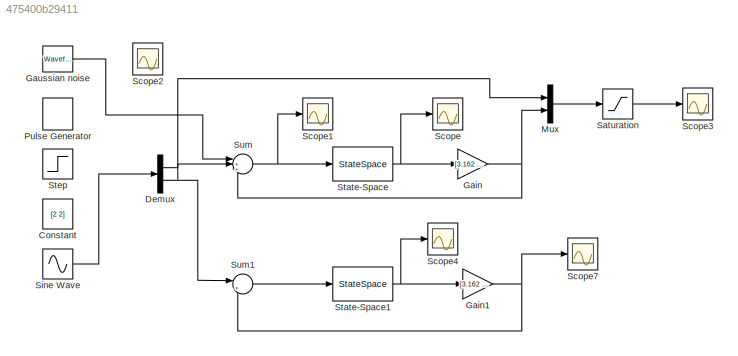
MODEL slx_475400b29411
KIND model
CONFIG AbsTol = auto
CONFIG EnableMultiTasking = off
CONFIG FixedStep = auto
CONFIG MaxStep = auto
CONFIG MinStep = auto
CONFIG RelTol = 1e-3
CONFIG SampleTimeConstraint = Unconstrained
CONFIG SolverName = VariableStepAuto
CONFIG StartTime = 0.0
CONFIG StopTime = 10.0
BLOCK [Constant] Constant
  Value = [2 2]
BLOCK [Demux] Demux
  Outputs = 2
BLOCK [Gain] Gain
  Gain = [3.162 1.376]
  Multiplication = Matrix(K*u)
BLOCK [Gain] Gain1
  Gain = [3.162 1.376]
  Multiplication = Matrix(K*u)
BLOCK [Reference] Gaussian noise  REF=simulink/Sources/Waveform
Generator
  SourceBlock = simulink/Sources/Waveform\nGenerator
  SourceType = WaveformGenerator
BLOCK [Mux] Mux
  DisplayOption = bar
  Inputs = 2
BLOCK [DiscretePulseGenerator] Pulse Generator
  Amplitude = [1 1]
  Period = 10
  PulseType = Time based
  PulseWidth = 5
BLOCK [Saturate] Saturation
  UpperLimit = 6
BLOCK [Scope] Scope
  Floating = off
  NumInputPorts = 1
  ScopeSpecificationString = Simulink.scopes.TimeScopeBlockCfg('CurrentConfiguration', extmgr.ConfigurationSet(extmgr.Configuration('Core','General UI',true,'FigureColor',[1 1 1]),extmgr.Configuration('Core','Source UI',true),extmgr.Configuration('Sources','WiredSimulink',true),extmgr.Configuration('Visuals','Time Domain',true,'SerializedDisplays',{struct('MinYLimReal','-0.06739','MaxYLimReal','0.60655','YLabelReal','','MinYL...<+1581ch>
BLOCK [Scope] Scope1
  Floating = off
  NumInputPorts = 1
  ScopeSpecificationString = Simulink.scopes.TimeScopeBlockCfg('CurrentConfiguration', extmgr.ConfigurationSet(extmgr.Configuration('Core','General UI',true),extmgr.Configuration('Core','Source UI',true),extmgr.Configuration('Sources','WiredSimulink',true,'DataLoggingVariableName','ScopeData1'),extmgr.Configuration('Visuals','Time Domain',true,'SerializedDisplays',{struct('MinYLimReal','-0.27093','MaxYLimReal','1.14121','YLab...<+1480ch>
BLOCK [Scope] Scope2
  Floating = off
  NumInputPorts = 1
  ScopeSpecificationString = Simulink.scopes.TimeScopeBlockCfg('CurrentConfiguration', extmgr.ConfigurationSet(extmgr.Configuration('Core','General UI',true),extmgr.Configuration('Core','Source UI',true),extmgr.Configuration('Sources','WiredSimulink',true,'DataLoggingVariableName','ScopeData1'),extmgr.Configuration('Visuals','Time Domain',true,'SerializedDisplays',{struct('MinYLimReal','-1.00000','MaxYLimReal','1.00000','YLab...<+1521ch>
BLOCK [Scope] Scope3
  Floating = off
  NumInputPorts = 1
  ScopeSpecificationString = Simulink.scopes.TimeScopeBlockCfg('CurrentConfiguration', extmgr.ConfigurationSet(extmgr.Configuration('Core','General UI',true,'FigureColor',[1 1 1]),extmgr.Configuration('Core','Source UI',true),extmgr.Configuration('Sources','WiredSimulink',true,'DataLoggingVariableName','ScopeData3'),extmgr.Configuration('Visuals','Time Domain',true,'SerializedDisplays',{struct('MinYLimReal','-0.69205','MaxYLi...<+1652ch>
BLOCK [Scope] Scope4
  Floating = off
  NumInputPorts = 1
  ScopeSpecificationString = Simulink.scopes.TimeScopeBlockCfg('CurrentConfiguration', extmgr.ConfigurationSet(extmgr.Configuration('Core','General UI',true),extmgr.Configuration('Core','Source UI',true),extmgr.Configuration('Sources','WiredSimulink',true,'DataLoggingVariableName','ScopeData4'),extmgr.Configuration('Visuals','Time Domain',true,'SerializedDisplays',{struct('MinYLimReal','-0.06739','MaxYLimReal','0.60655','YLab...<+1508ch>
BLOCK [Scope] Scope7
  Floating = off
  NumInputPorts = 1
  ScopeSpecificationString = Simulink.scopes.TimeScopeBlockCfg('CurrentConfiguration', extmgr.ConfigurationSet(extmgr.Configuration('Core','General UI',true),extmgr.Configuration('Core','Source UI',true),extmgr.Configuration('Sources','WiredSimulink',true,'DataLoggingVariableName','ScopeData7'),extmgr.Configuration('Visuals','Time Domain',true,'SerializedDisplays',{struct('MinYLimReal','-1.2981','MaxYLimReal','1.29811','YLabe...<+1480ch>
BLOCK [Sin] Sine Wave
  Amplitude = [1 1]
  SampleTime = 0
BLOCK [StateSpace] State-Space
  A = [0 1; 0 0]
  B = [0; 7.07]
  C = [1 0; 0 1]
  D = [0; 0]
  InitialCondition = [0; 0]
BLOCK [StateSpace] State-Space1
  A = [0 1; 0 0]
  B = [0; 7.07]
  C = [1 0; 0 1]
  D = [0; 0]
  InitialCondition = [0; 0]
BLOCK [Step] Step
  After = [1 1]
  Before = [0 0]
  SampleTime = 0
BLOCK [Sum] Sum
  Inputs = |++-
BLOCK [Sum] Sum1
  Inputs = |+-
NET Demux:1 -> Mux:1, Sum:2
LINE Demux:2 -> Sum1:1
NET Gain1:1 -> Scope7:1, Sum1:2
NET Gain:1 -> Mux:2, Sum:3
LINE Gaussian noise:1 -> Sum:1
LINE Mux:1 -> Saturation:1
LINE Saturation:1 -> Scope3:1
LINE Sine Wave:1 -> Demux:1
NET State-Space1:1 -> Gain1:1, Scope4:1
NET State-Space:1 -> Gain:1, Scope:1
LINE Sum1:1 -> State-Space1:1
NET Sum:1 -> Scope1:1, State-Space:1
note: NET lines group one-source signal fan-out (src -> all destinations, sorted); 1:1 wires keep LINE
